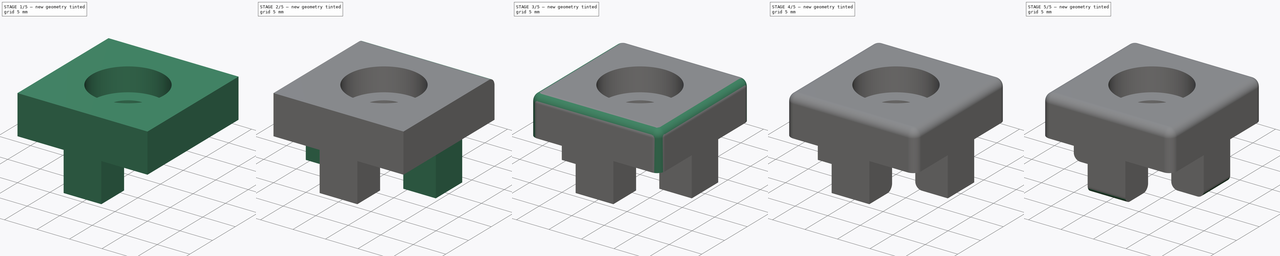
[diagram: build sequence overview — one tinted view per stage of 5, left to right]
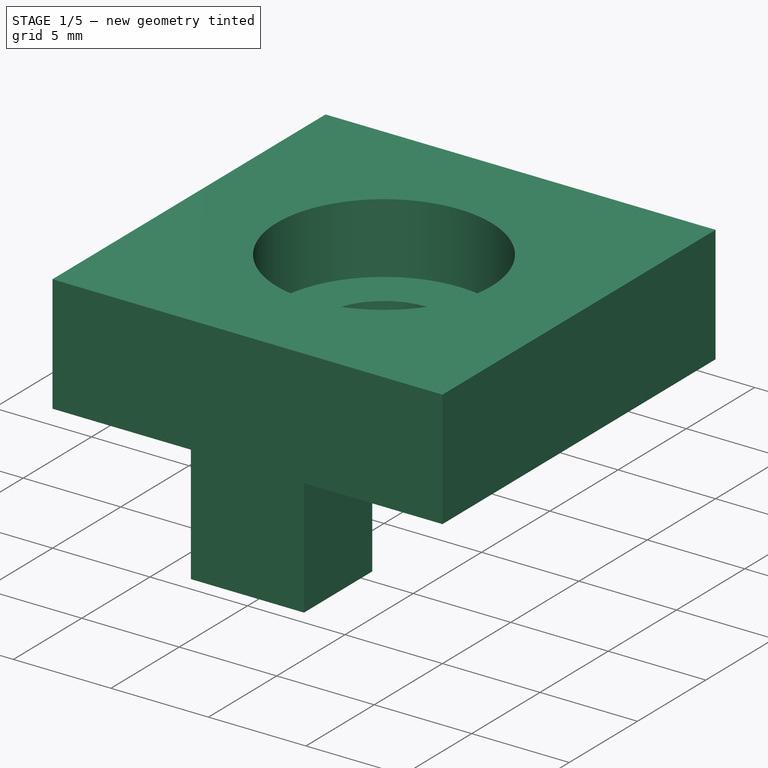
[diagram: stage 1 of 5 — iso view after this stage's code; geometry added in this stage tinted green]
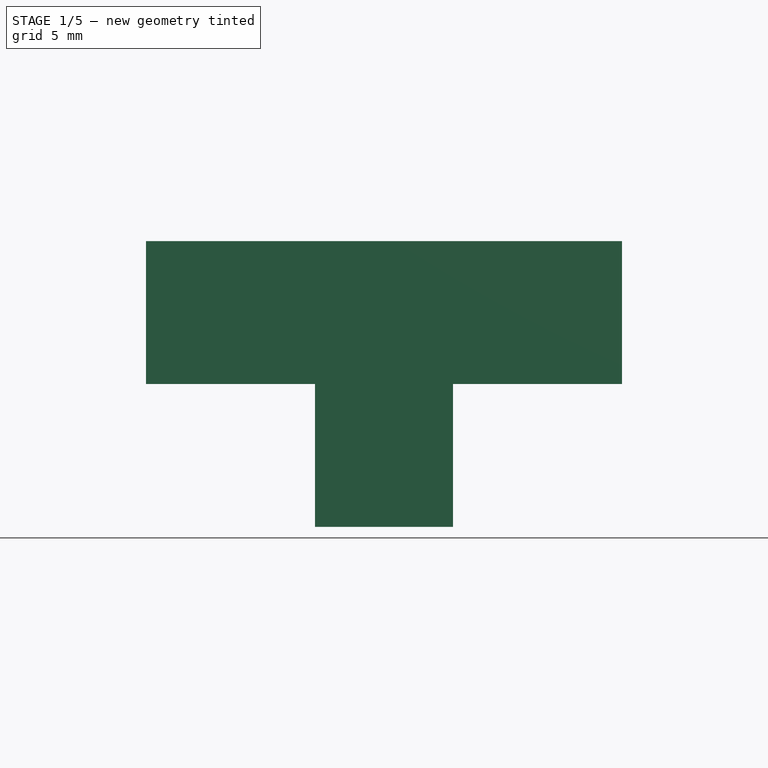
[diagram: stage 1 of 5 — front view after this stage's code; geometry added in this stage tinted green]
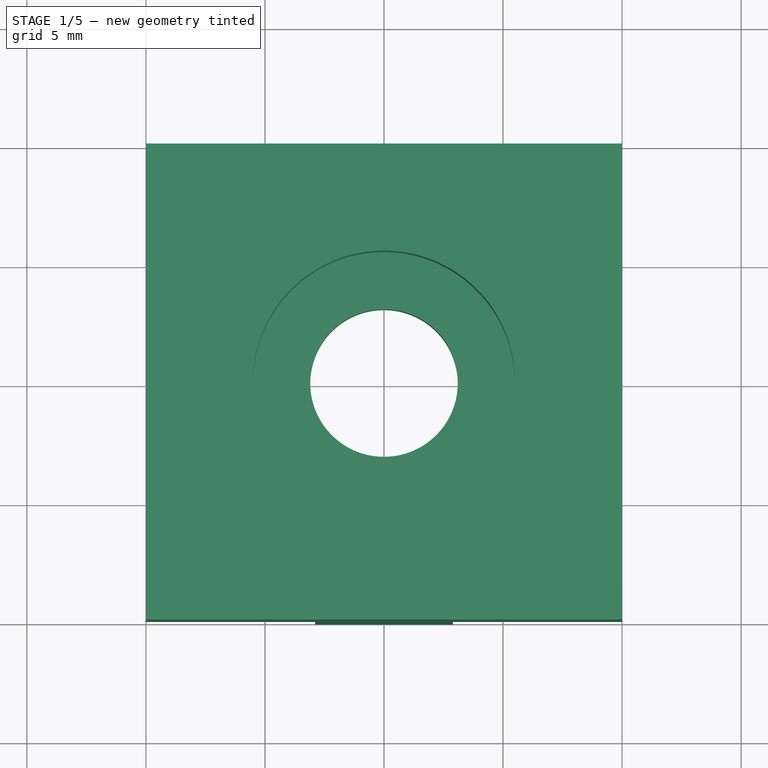
[diagram: stage 1 of 5 — top view after this stage's code; geometry added in this stage tinted green]
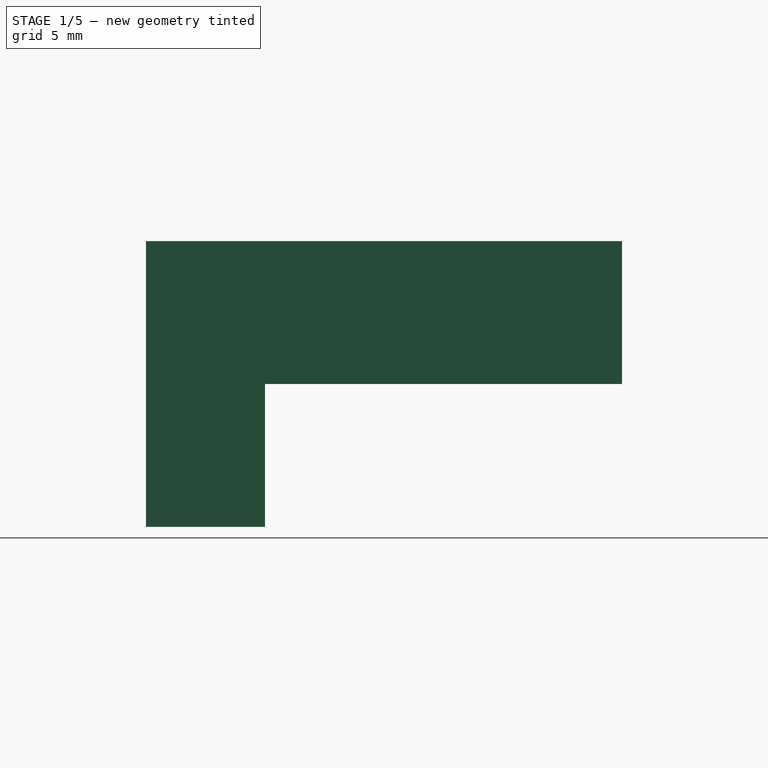
[diagram: stage 1 of 5 — right view after this stage's code; geometry added in this stage tinted green]
FCSTD DOCUMENT  (FreeCAD 0.14R3702 (Git))
Label: endkappe1d
License: CC-BY 3.0
LicenseURL: http://creativecommons.org/licenses/by/3.0/
objects: PartDesign::Fillet×12, Sketcher::SketchObject×7, PartDesign::Pad×5, PartDesign::Pocket×2
note: 33 computed .brp shape members not serialized (recipe doc carries the construction recipe); baked Part::Feature solids carry a one-line shape summary decoded from their .brp

FEATURE [Sketcher::SketchObject] Sketch
  sketch-geometry (4):
    g0: LineSegment StartX=0 StartY=20 StartZ=0 EndX=20 EndY=20 EndZ=0
    g1: LineSegment StartX=20 StartY=20 StartZ=0 EndX=20 EndY=0 EndZ=0
    g2: LineSegment StartX=20 StartY=0 StartZ=0 EndX=0 EndY=0 EndZ=0
    g3: LineSegment StartX=0 StartY=0 StartZ=0 EndX=0 EndY=20 EndZ=0
  constraints (11):
    c: Coincident(g0,g1)
    c: Coincident(g1,g2)
    c: Coincident(g2,g3)
    c: Coincident(g3,g0)
    c: Horizontal(g0)
    c: Horizontal(g2)
    c: Vertical(g1)
    c: Vertical(g3)
    c: DistanceX(g0,g0) = 20
    c: DistanceY(g0,g1) = -20
    c: Coincident(g2,g-1)
FEATURE [PartDesign::Pad] Pad
  Length = 6
  Length2 = 100
  Sketch = -> Sketch
  Type = 0
FEATURE [Sketcher::SketchObject] Sketch001
  Placement = pos=(0,0,6) rot=(0,0,1;0rad)
  Support = -> Pad [Face6]
  sketch-geometry (1):
    g0: Circle CenterX=10 CenterY=10 CenterZ=0 NormalX=0 NormalY=0 NormalZ=1 Radius=5.5
  constraints (3):
    c: DistanceX(g-1,g0) = 10
    c: DistanceY(g-1,g0) = 10
    c: Radius(g0) = 5.5
FEATURE [PartDesign::Pocket] Pocket
  Length = 3.6
  Sketch = -> Sketch001
  Type = 0
FEATURE [Sketcher::SketchObject] Sketch002
  Placement = pos=(0,0,2.4) rot=(0,0,1;0rad)
  Support = -> Pocket [Face8]
  sketch-geometry (1):
    g0: Circle CenterX=10 CenterY=10 CenterZ=0 NormalX=0 NormalY=0 NormalZ=1 Radius=3.1
  constraints (3):
    c: DistanceY(g-1,g0) = 10
    c: DistanceX(g-1,g0) = 10
    c: Radius(g0) = 3.1
FEATURE [PartDesign::Pocket] Pocket001
  Length = 5
  Sketch = -> Sketch002
  Type = 0
FEATURE [Sketcher::SketchObject] Sketch003
  Placement = pos=(0,0,0) rot=(1,0,0;3.14159rad)
  Support = -> Pocket001 [Face4]
  sketch-geometry (4):
    g0: LineSegment StartX=7.1 StartY=0 StartZ=0 EndX=12.9 EndY=0 EndZ=0
    g1: LineSegment StartX=12.9 StartY=0 StartZ=0 EndX=12.9 EndY=-5 EndZ=0
    g2: LineSegment StartX=12.9 StartY=-5 StartZ=0 EndX=7.1 EndY=-5 EndZ=0
    g3: LineSegment StartX=7.1 StartY=-5 StartZ=0 EndX=7.1 EndY=0 EndZ=0
  constraints (12):
    c: Coincident(g0,g1)
    c: Coincident(g1,g2)
    c: Coincident(g2,g3)
    c: Coincident(g3,g0)
    c: Horizontal(g0)
    c: Horizontal(g2)
    c: Vertical(g1)
    c: Vertical(g3)
    c: DistanceX(g0,g0) = 5.8
    c: DistanceY(g0,g1) = -5
    c: DistanceY(g-1,g0) = 0
    c: DistanceX(g-1,g0) = 7.1
FEATURE [PartDesign::Pad] Pad001
  Length = 6
  Length2 = 100
  Sketch = -> Sketch003
  Type = 0
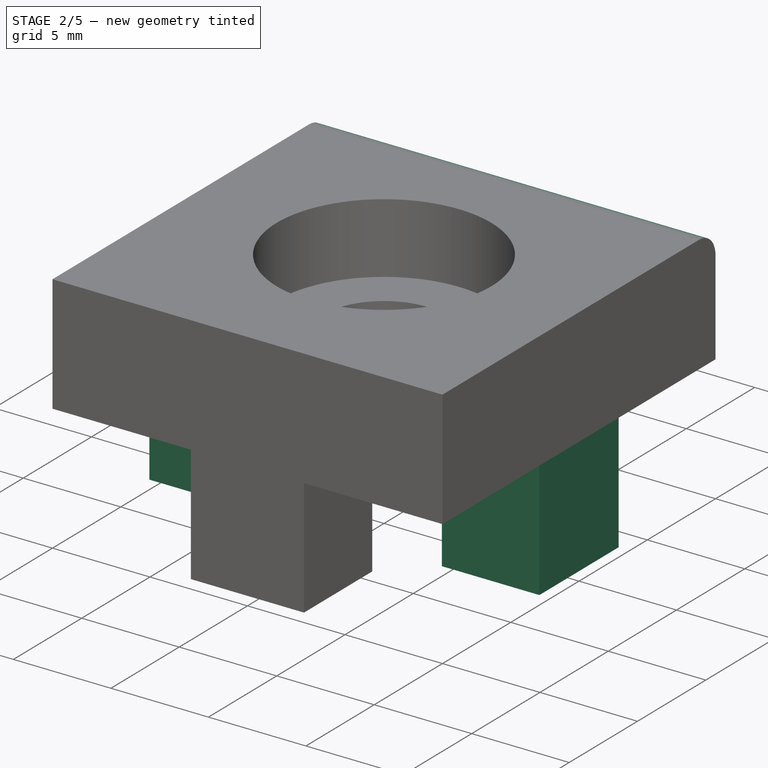
[diagram: stage 2 of 5 — iso view after this stage's code; geometry added in this stage tinted green]
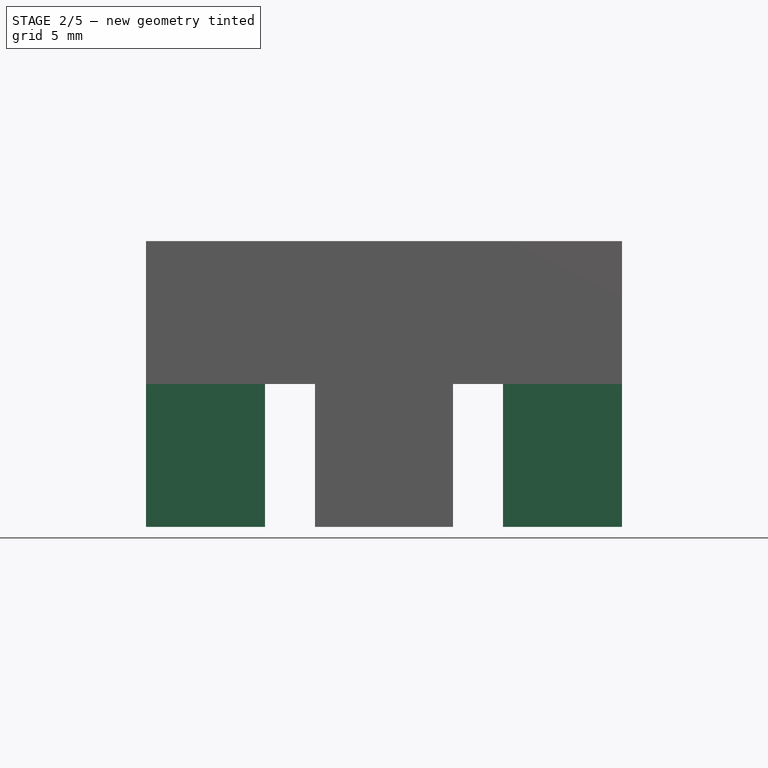
[diagram: stage 2 of 5 — front view after this stage's code; geometry added in this stage tinted green]
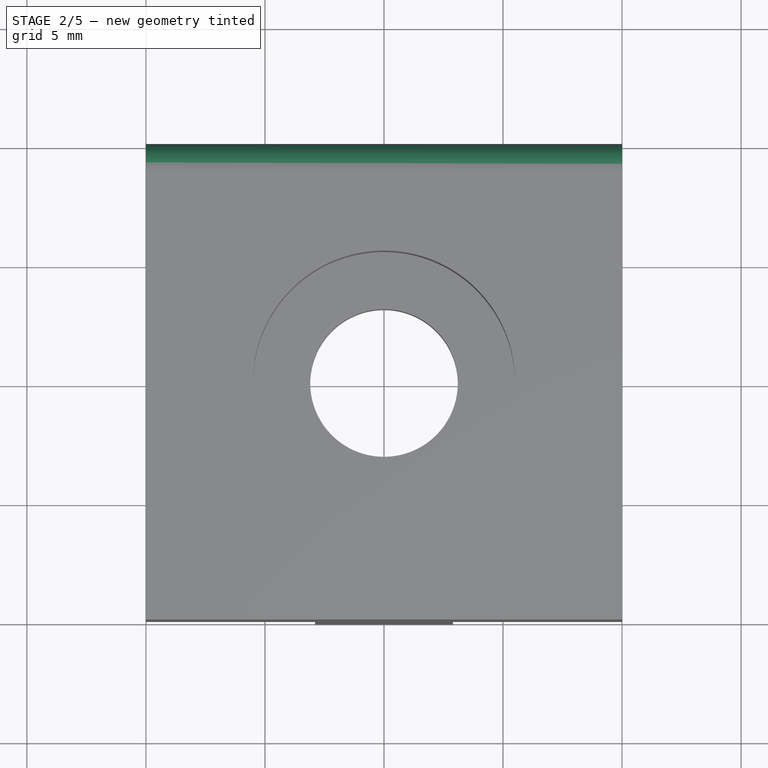
[diagram: stage 2 of 5 — top view after this stage's code; geometry added in this stage tinted green]
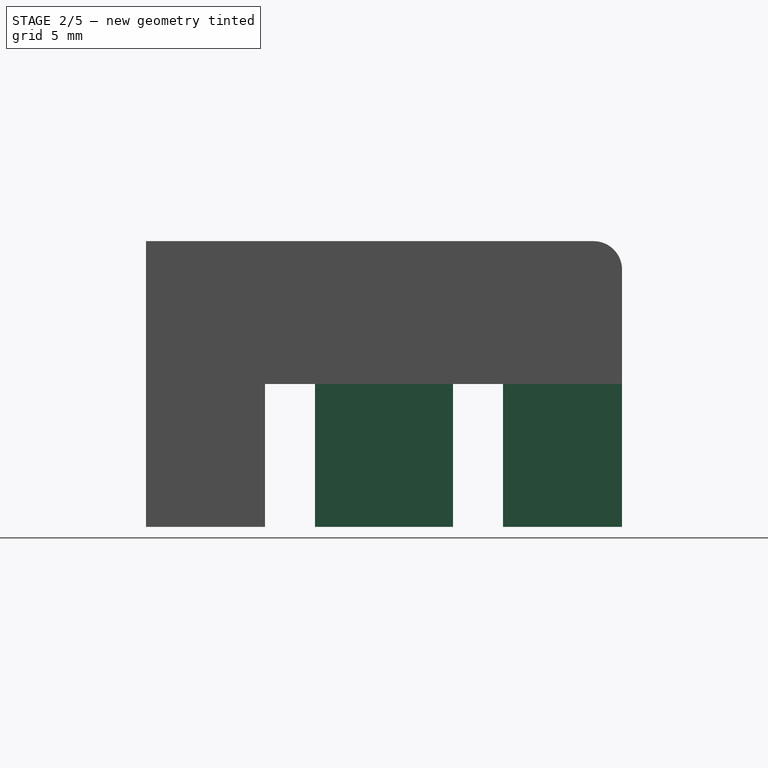
[diagram: stage 2 of 5 — right view after this stage's code; geometry added in this stage tinted green]
FEATURE [Sketcher::SketchObject] Sketch004
  Placement = pos=(0,0,0) rot=(1,0,0;3.14159rad)
  Support = -> Pad001 [Face4]
  sketch-geometry (4):
    g0: LineSegment StartX=15 StartY=-7.1 StartZ=0 EndX=20 EndY=-7.1 EndZ=0
    g1: LineSegment StartX=20 StartY=-7.1 StartZ=0 EndX=20 EndY=-12.9 EndZ=0
    g2: LineSegment StartX=20 StartY=-12.9 StartZ=0 EndX=15 EndY=-12.9 EndZ=0
    g3: LineSegment StartX=15 StartY=-12.9 StartZ=0 EndX=15 EndY=-7.1 EndZ=0
  constraints (12):
    c: Coincident(g0,g1)
    c: Coincident(g1,g2)
    c: Coincident(g2,g3)
    c: Coincident(g3,g0)
    c: Horizontal(g0)
    c: Horizontal(g2)
    c: Vertical(g1)
    c: Vertical(g3)
    c: DistanceY(g0,g1) = -5.8
    c: DistanceX(g0,g0) = 5
    c: DistanceX(g-1,g0) = 15
    c: DistanceY(g-1,g0) = -7.1
FEATURE [PartDesign::Pad] Pad002
  Length = 6
  Length2 = 100
  Sketch = -> Sketch004
  Type = 0
FEATURE [Sketcher::SketchObject] Sketch005
  Placement = pos=(0,0,0) rot=(1,0,0;3.14159rad)
  Support = -> Pad002 [Face4]
  sketch-geometry (4):
    g0: LineSegment StartX=7.1 StartY=-15 StartZ=0 EndX=12.9 EndY=-15 EndZ=0
    g1: LineSegment StartX=12.9 StartY=-15 StartZ=0 EndX=12.9 EndY=-20 EndZ=0
    g2: LineSegment StartX=12.9 StartY=-20 StartZ=0 EndX=7.1 EndY=-20 EndZ=0
    g3: LineSegment StartX=7.1 StartY=-20 StartZ=0 EndX=7.1 EndY=-15 EndZ=0
  constraints (12):
    c: Coincident(g0,g1)
    c: Coincident(g1,g2)
    c: Coincident(g2,g3)
    c: Coincident(g3,g0)
    c: Horizontal(g0)
    c: Horizontal(g2)
    c: Vertical(g1)
    c: Vertical(g3)
    c: DistanceX(g0,g0) = 5.8
    c: DistanceY(g0,g1) = -5
    c: DistanceY(g-1,g0) = -15
    c: DistanceX(g-1,g0) = 7.1
FEATURE [PartDesign::Pad] Pad003
  Length = 6
  Length2 = 100
  Sketch = -> Sketch005
  Type = 0
FEATURE [Sketcher::SketchObject] Sketch006
  Placement = pos=(0,0,0) rot=(1,0,0;3.14159rad)
  Support = -> Pad003 [Face4]
  sketch-geometry (4):
    g0: LineSegment StartX=0 StartY=-7.1 StartZ=0 EndX=5 EndY=-7.1 EndZ=0
    g1: LineSegment StartX=5 StartY=-7.1 StartZ=0 EndX=5 EndY=-12.9 EndZ=0
    g2: LineSegment StartX=5 StartY=-12.9 StartZ=0 EndX=0 EndY=-12.9 EndZ=0
    g3: LineSegment StartX=0 StartY=-12.9 StartZ=0 EndX=0 EndY=-7.1 EndZ=0
  constraints (12):
    c: Coincident(g0,g1)
    c: Coincident(g1,g2)
    c: Coincident(g2,g3)
    c: Coincident(g3,g0)
    c: Horizontal(g0)
    c: Horizontal(g2)
    c: Vertical(g1)
    c: Vertical(g3)
    c: DistanceX(g0,g0) = 5
    c: DistanceY(g0,g2) = -5.8
    c: DistanceX(g-1,g0) = 5
    c: DistanceY(g-1,g0) = -7.1
FEATURE [PartDesign::Pad] Pad004
  Length = 6
  Length2 = 100
  Sketch = -> Sketch006
  Type = 0
FEATURE [PartDesign::Fillet] Fillet
  Base = -> Pad004 [Edge29]
  Radius = 1.2
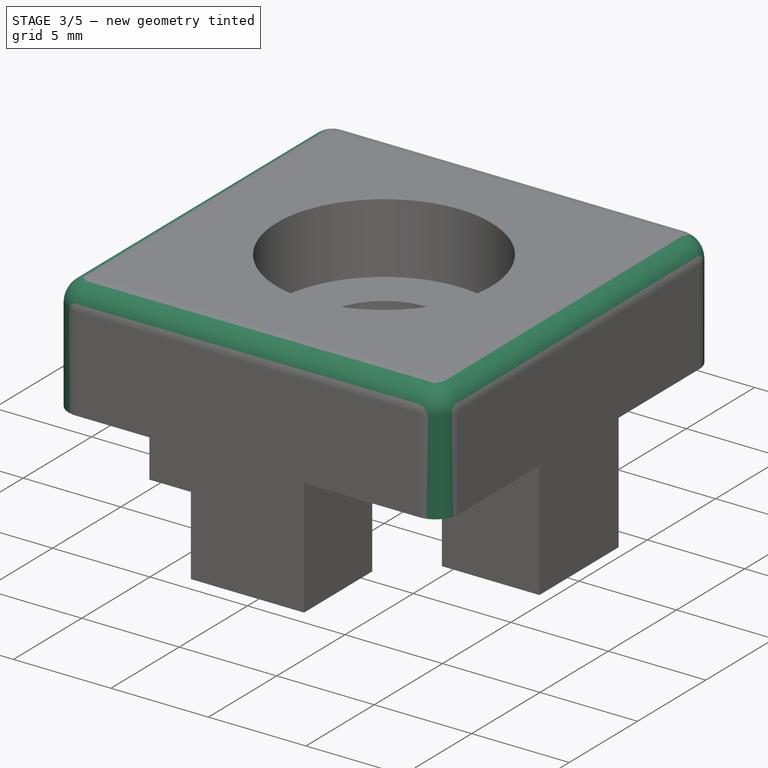
[diagram: stage 3 of 5 — iso view after this stage's code; geometry added in this stage tinted green]
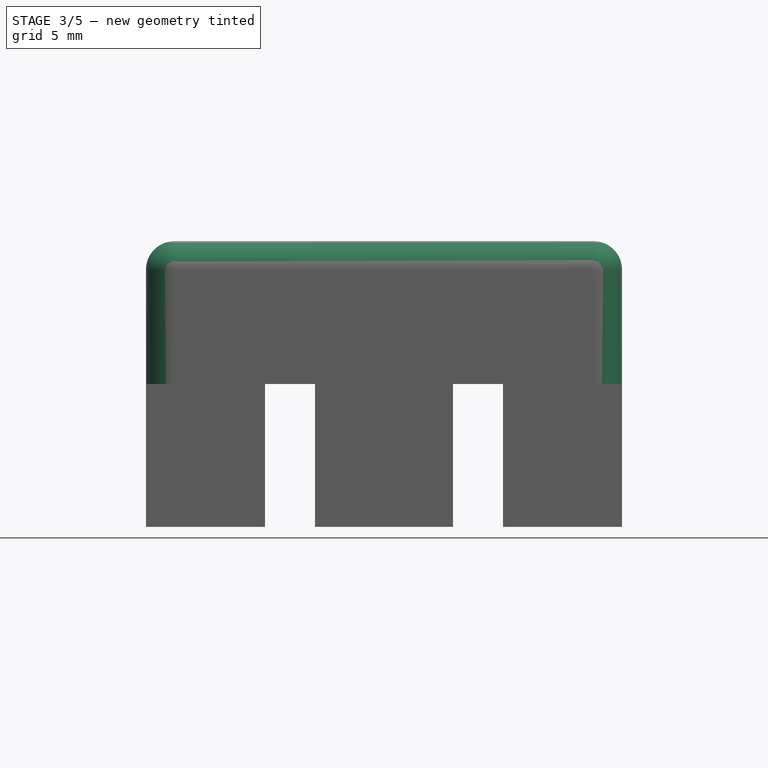
[diagram: stage 3 of 5 — front view after this stage's code; geometry added in this stage tinted green]
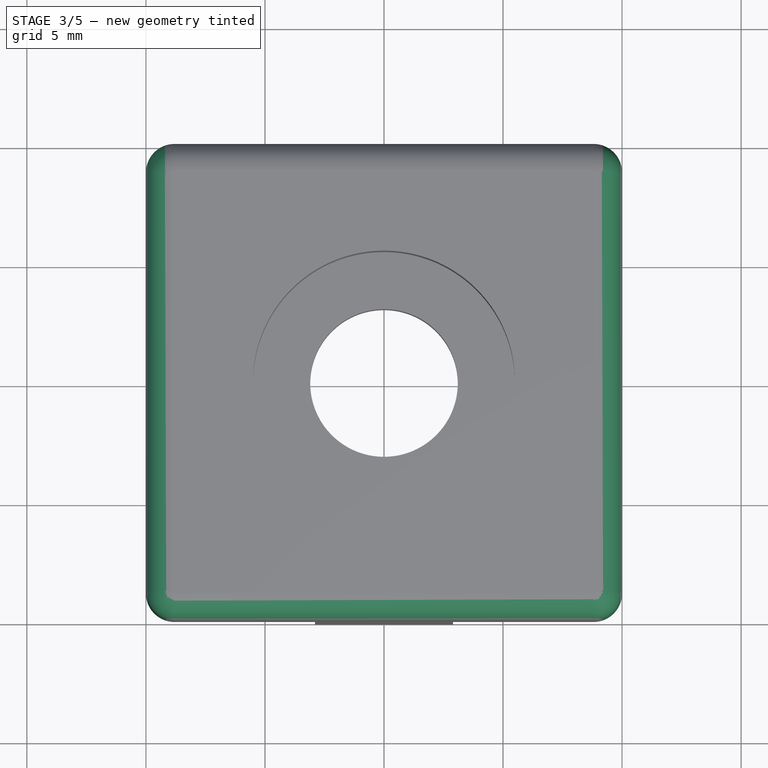
[diagram: stage 3 of 5 — top view after this stage's code; geometry added in this stage tinted green]
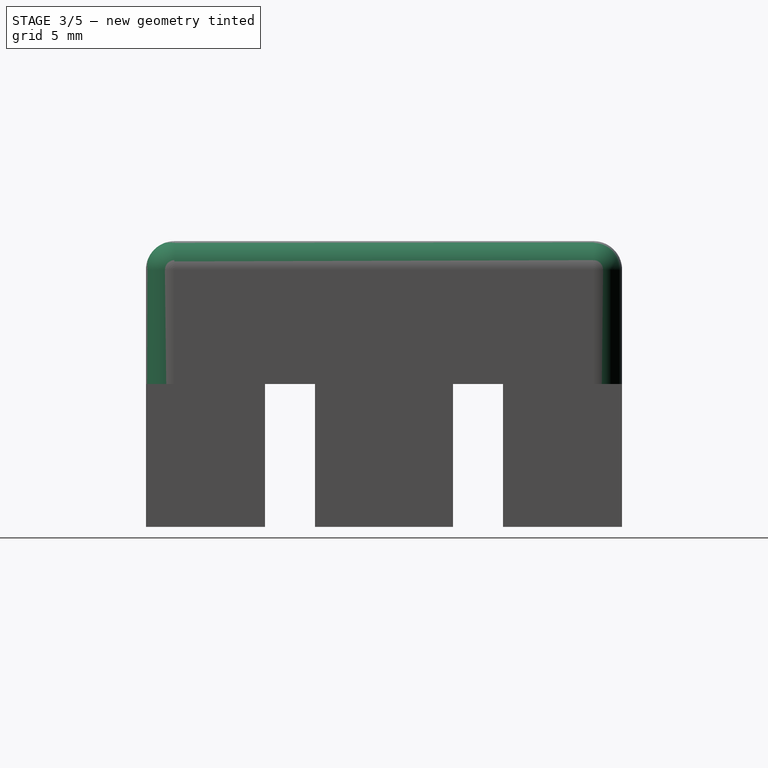
[diagram: stage 3 of 5 — right view after this stage's code; geometry added in this stage tinted green]
FEATURE [PartDesign::Fillet] Fillet001
  Base = -> Fillet [Edge33]
  Radius = 1.2
FEATURE [PartDesign::Fillet] Fillet002
  Base = -> Fillet001 [Edge9]
  Radius = 1.2
FEATURE [PartDesign::Fillet] Fillet003
  Base = -> Fillet002 [Edge3]
  Radius = 1.2
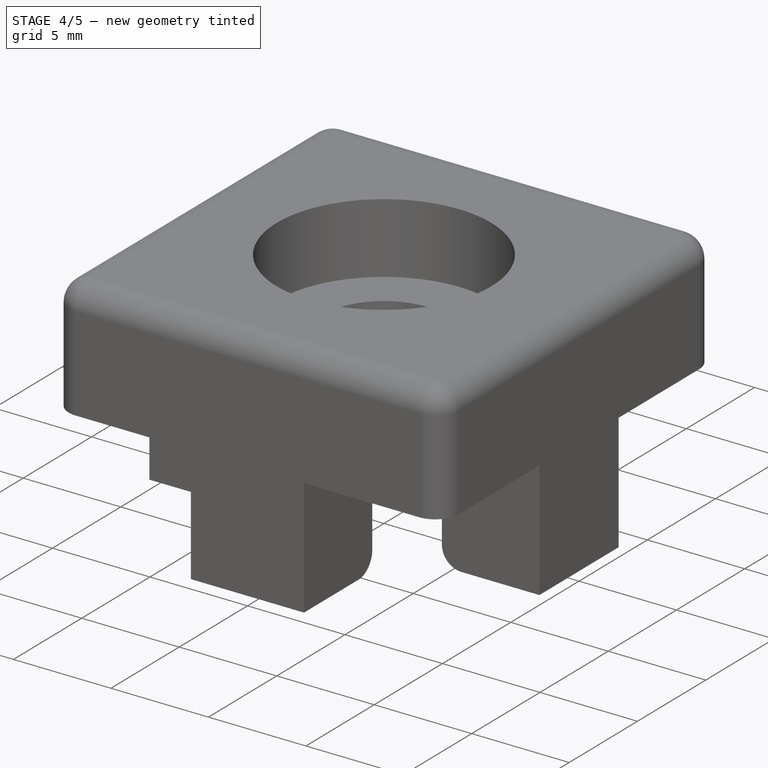
[diagram: stage 4 of 5 — iso view after this stage's code; geometry added in this stage tinted green]
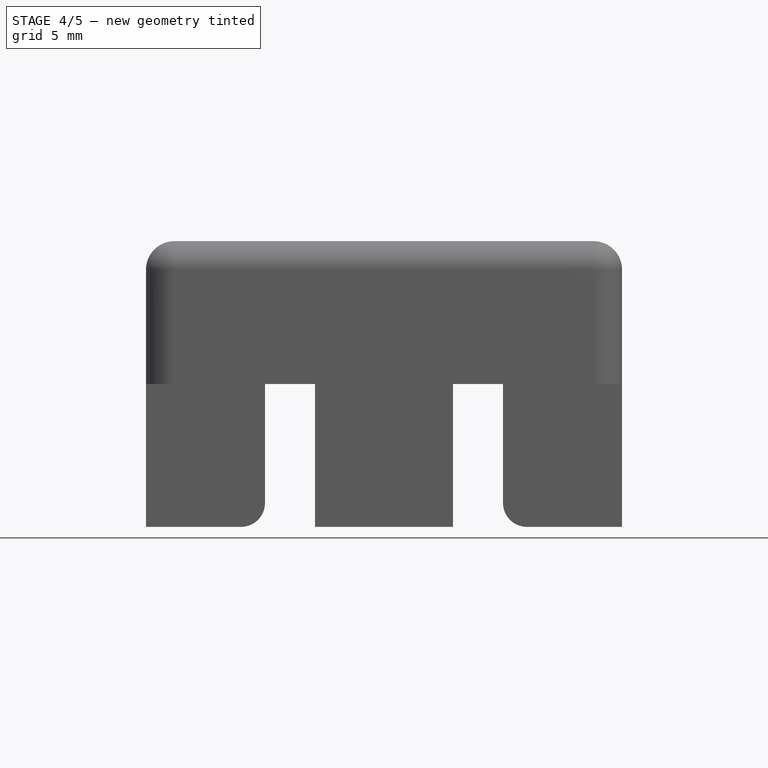
[diagram: stage 4 of 5 — front view after this stage's code; geometry added in this stage tinted green]
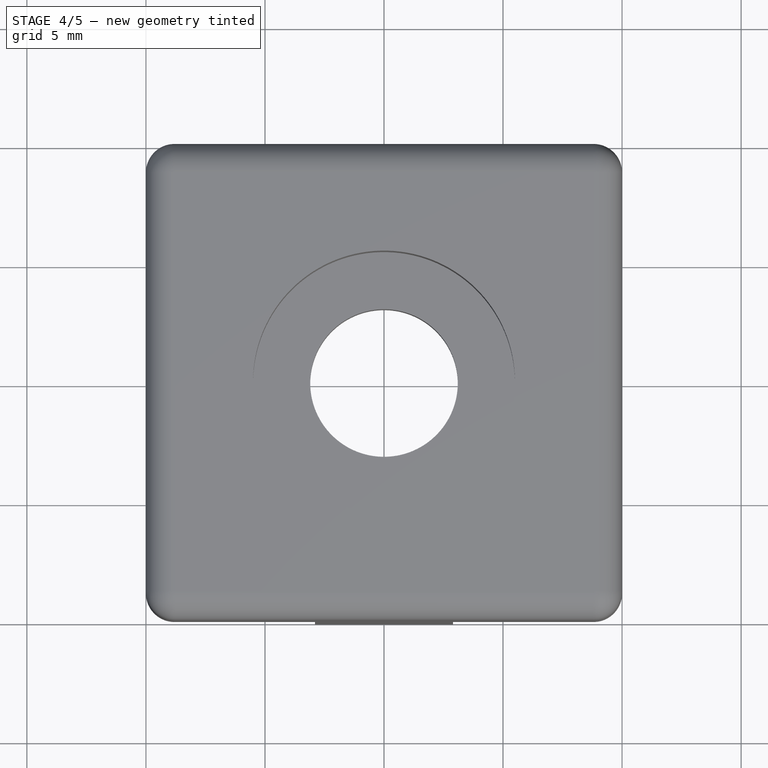
[diagram: stage 4 of 5 — top view after this stage's code; geometry added in this stage tinted green]
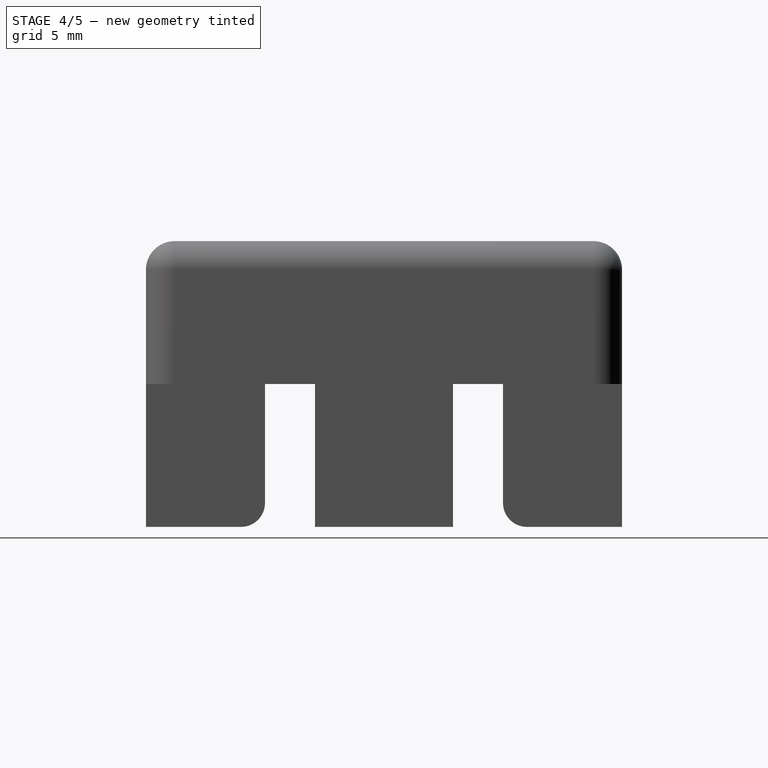
[diagram: stage 4 of 5 — right view after this stage's code; geometry added in this stage tinted green]
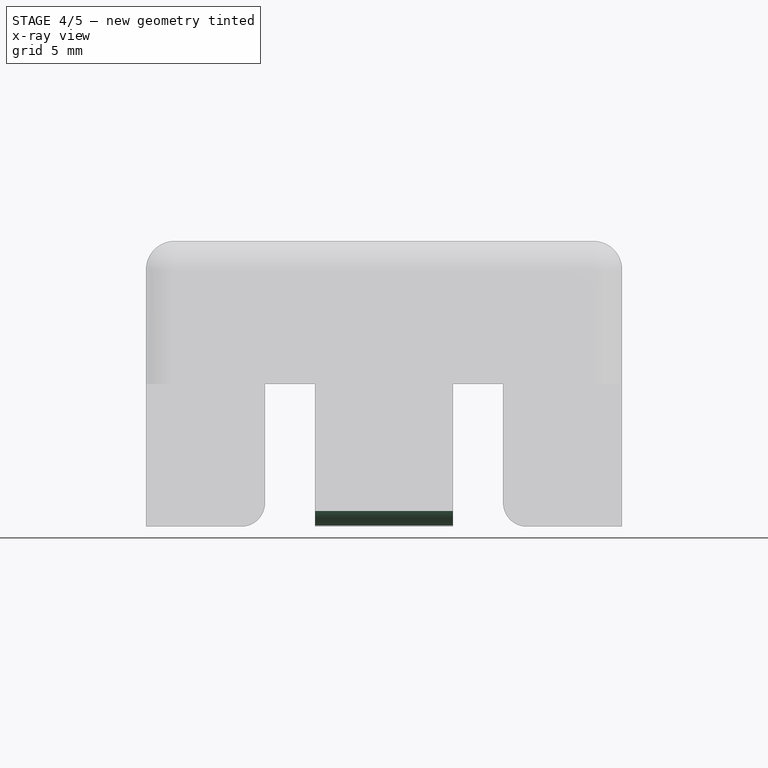
[diagram: stage 4 of 5 — x-ray composite at the front view; earlier geometry ghosted, this stage's added geometry solid]
FEATURE [PartDesign::Fillet] Fillet004
  Base = -> Fillet003 [Edge86]
  Radius = 1
FEATURE [PartDesign::Fillet] Fillet005
  Base = -> Fillet004 [Edge73]
  Radius = 1
FEATURE [PartDesign::Fillet] Fillet006
  Base = -> Fillet005 [Edge54]
  Radius = 1
FEATURE [PartDesign::Fillet] Fillet007
  Base = -> Fillet006 [Edge69]
  Radius = 1
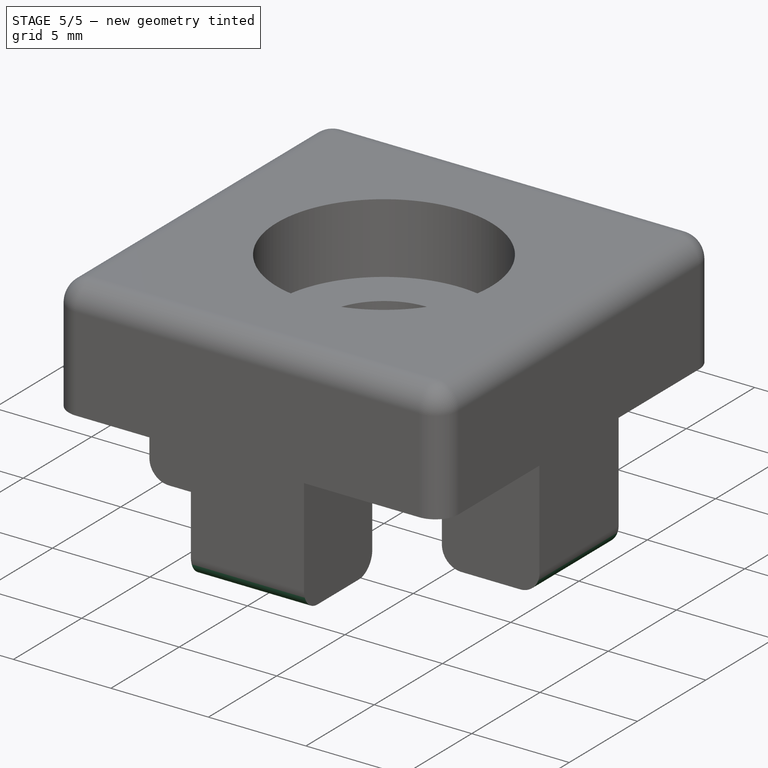
[diagram: stage 5 of 5 — iso view after this stage's code; geometry added in this stage tinted green]
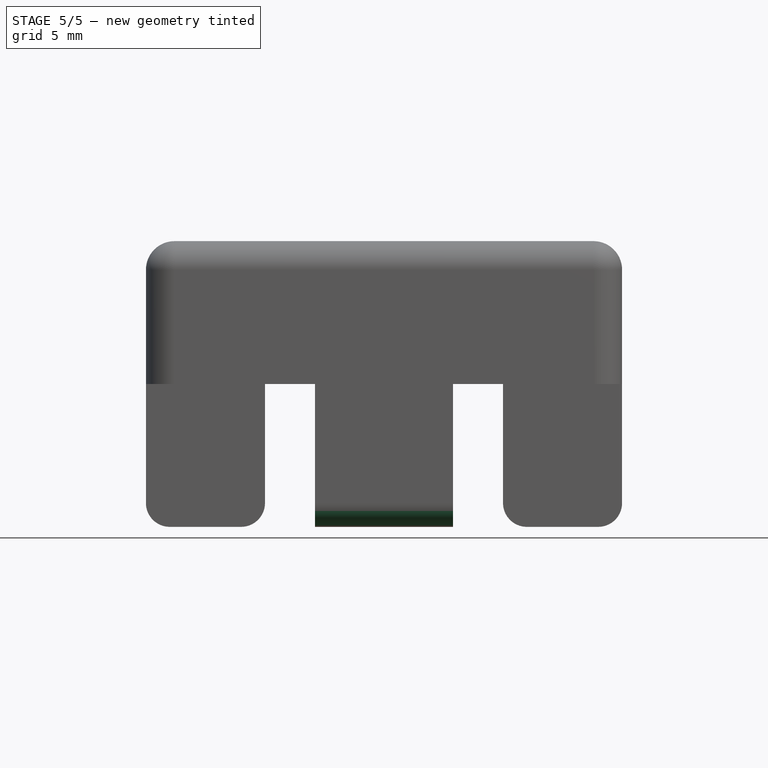
[diagram: stage 5 of 5 — front view after this stage's code; geometry added in this stage tinted green]
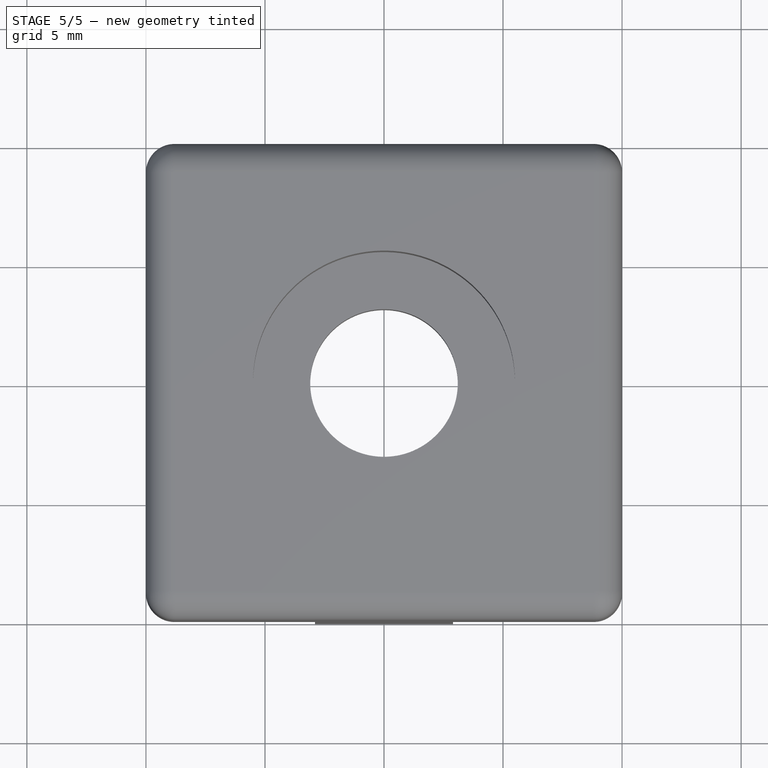
[diagram: stage 5 of 5 — top view after this stage's code; geometry added in this stage tinted green]
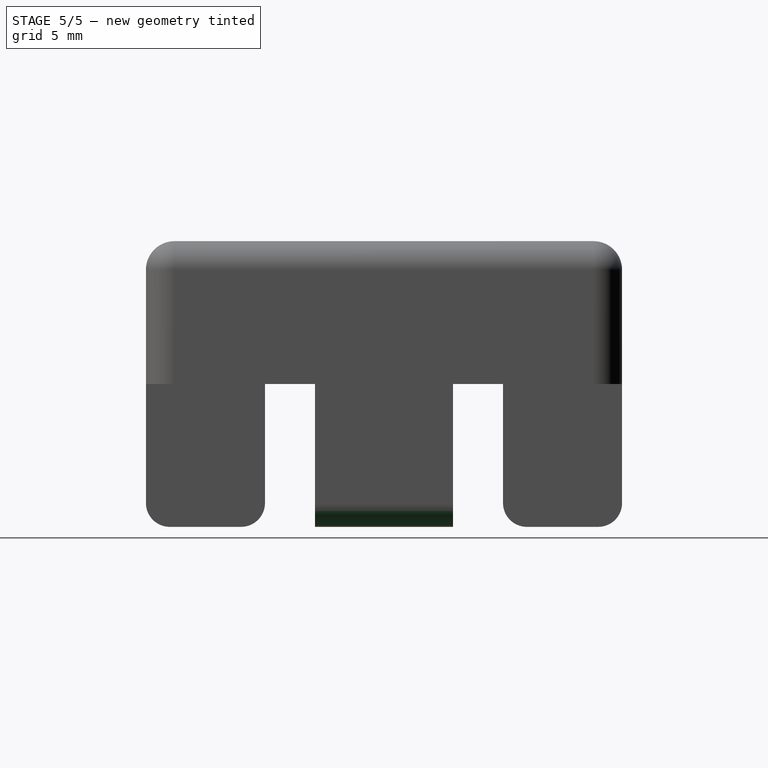
[diagram: stage 5 of 5 — right view after this stage's code; geometry added in this stage tinted green]
FEATURE [PartDesign::Fillet] Fillet008
  Base = -> Fillet007 [Edge93]
  Radius = 1
FEATURE [PartDesign::Fillet] Fillet009
  Base = -> Fillet008 [Edge108]
  Radius = 1
FEATURE [PartDesign::Fillet] Fillet010
  Base = -> Fillet009 [Edge97]
  Radius = 1
FEATURE [PartDesign::Fillet] Fillet011
  Base = -> Fillet010 [Edge105]
  Radius = 1
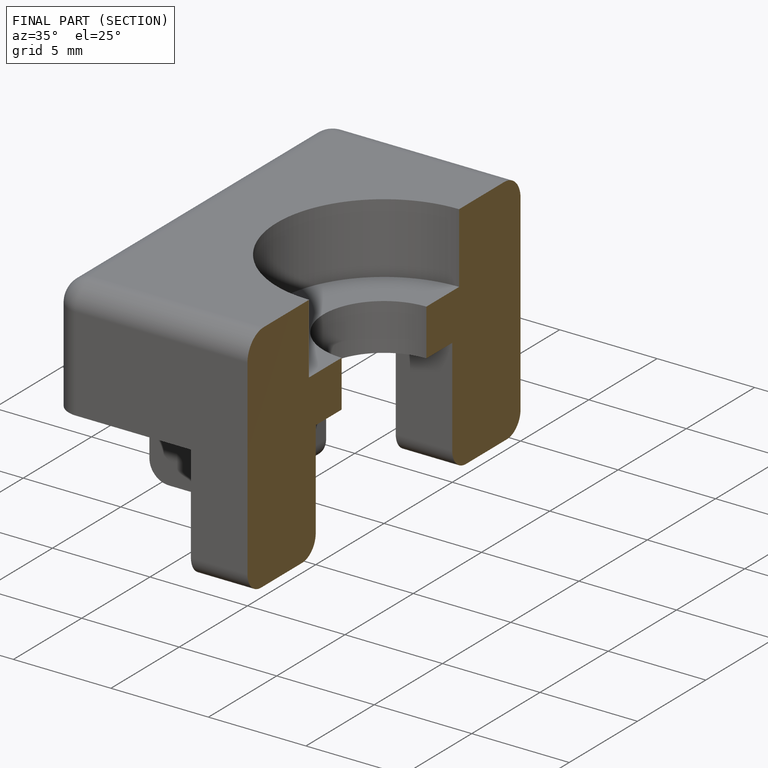
[diagram: finished part — half-section view (interior)]
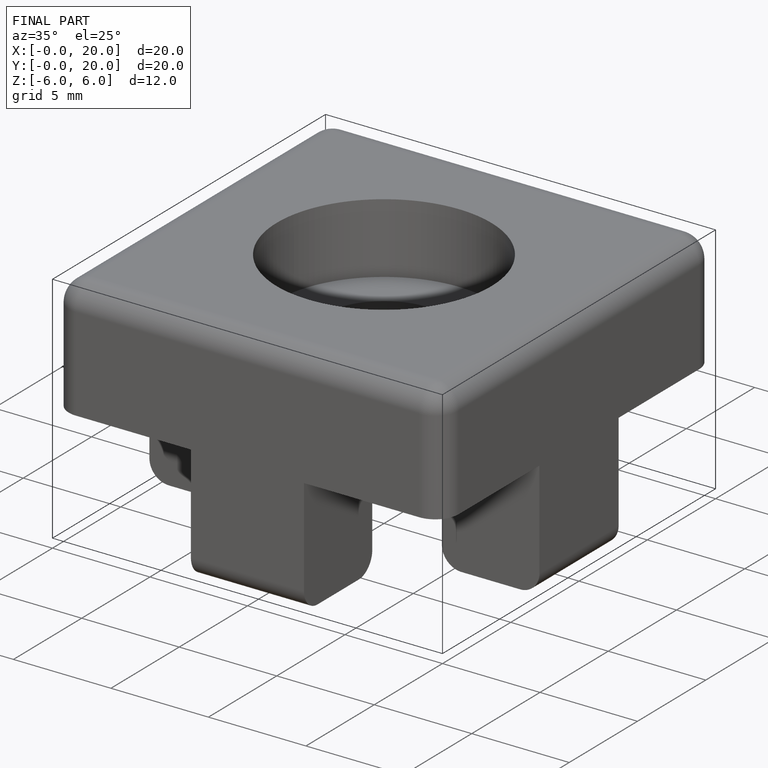
[diagram: finished part — iso view with bounding-box wireframe]
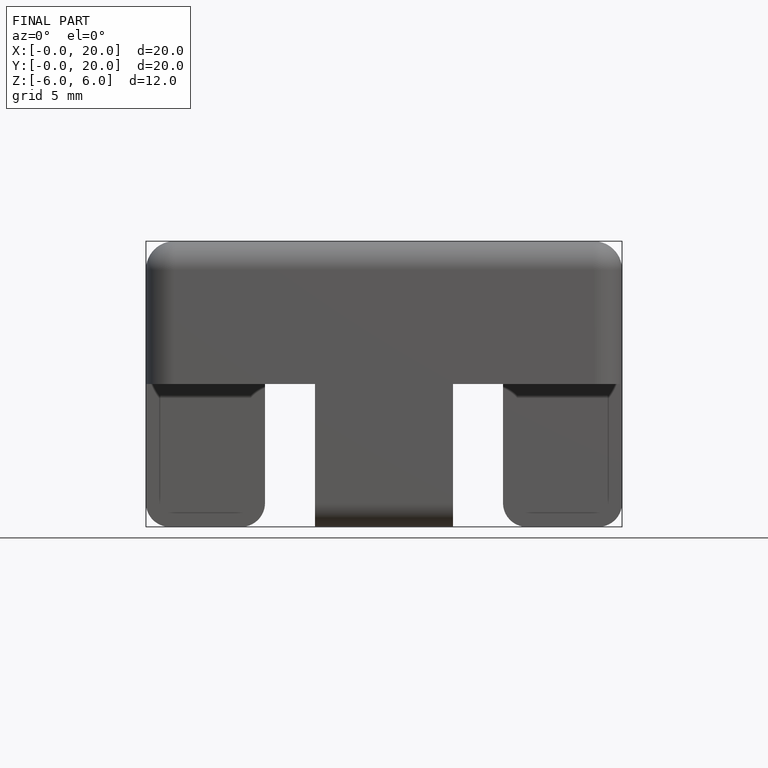
[diagram: finished part — front view with bounding-box wireframe]
